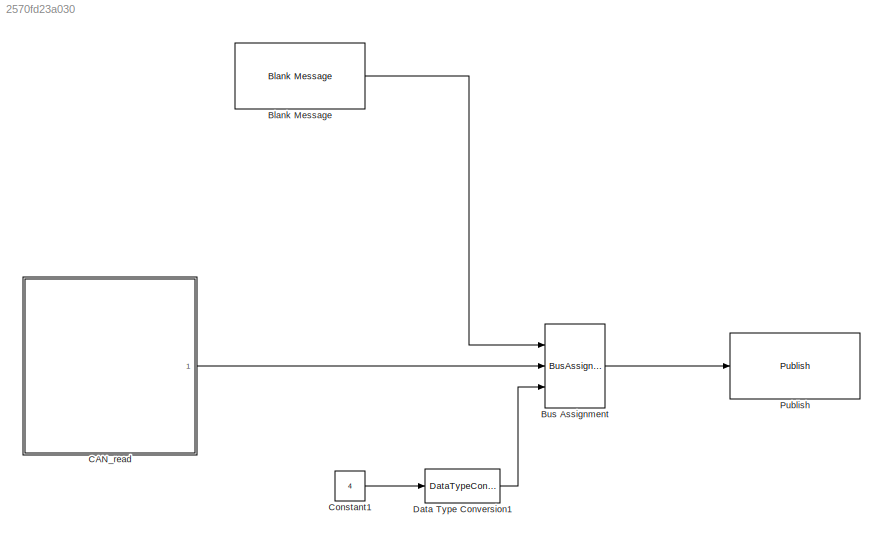
MODEL slx_2570fd23a030
KIND model
CONFIG AbsTol = auto
CONFIG EnableMultiTasking = off
CONFIG FixedStep = 0.001
CONFIG MaxStep = auto
CONFIG MinStep = auto
CONFIG RelTol = 1e-3
CONFIG SampleTimeConstraint = Unconstrained
CONFIG Solver = FixedStepAuto
CONFIG SolverName = FixedStepAuto
CONFIG StartTime = 0.0
CONFIG StopTime = inf
WORKSPACE source: MAT-file member
WORKSPACE SL_ROS_VariableLengthArrays_MaxSizes: struct (value not decoded)
BLOCK [Reference] Blank Message  REF=robotlib/Blank Message
  Ports = [0, 1]
  SourceBlock = robotlib/Blank Message
  SourceLibraryInfo = This block requires Robotics System Toolbox
  SourceProductBaseCode = RO
  SourceProductName = Robotics System Toolbox
  SourceType = ROS Blank Message
BLOCK [BusAssignment] Bus Assignment
  AssignedSignals = Data,Data_SL_Info.CurrentLength
  Ports = [3, 1]
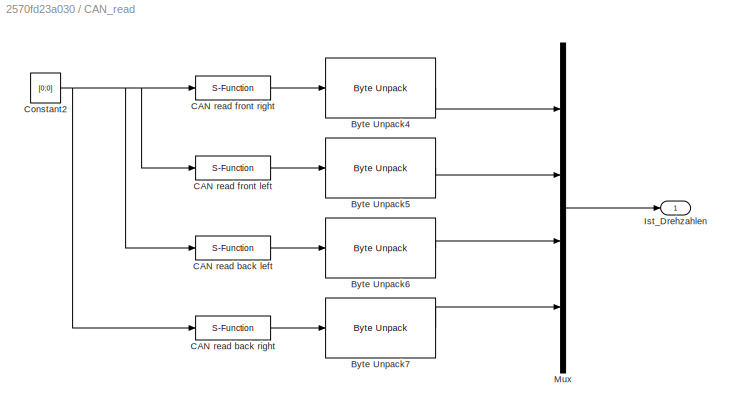
BLOCK [SubSystem] CAN_read
  Ports = [0, 1]
  RequestExecContextInheritance = off
  Variant = off
BLOCK [Reference] CAN_read/Byte Unpack4  REF=etargetslib/Byte Unpack
  Ports = [1, 1]
  SourceBlock = etargetslib/Byte Unpack
  SourceType = Byte Unpack
BLOCK [Reference] CAN_read/Byte Unpack5  REF=etargetslib/Byte Unpack
  Ports = [1, 1]
  SourceBlock = etargetslib/Byte Unpack
  SourceType = Byte Unpack
BLOCK [Reference] CAN_read/Byte Unpack6  REF=etargetslib/Byte Unpack
  Ports = [1, 1]
  SourceBlock = etargetslib/Byte Unpack
  SourceType = Byte Unpack
BLOCK [Reference] CAN_read/Byte Unpack7  REF=etargetslib/Byte Unpack
  Ports = [1, 1]
  SourceBlock = etargetslib/Byte Unpack
  SourceType = Byte Unpack
BLOCK [S-Function] CAN_read/CAN read back left
  EnableBusSupport = off
  FunctionName = CAN_read_SDM
  Parameters = Port,Identifier
  Ports = [1, 1]
  SFcnIsStateOwnerBlock = off
  SFunctionDeploymentMode = off
  SFunctionModules = socketcan
BLOCK [S-Function] CAN_read/CAN read back right
  EnableBusSupport = off
  FunctionName = CAN_read_SDM
  Parameters = Port,Identifier
  Ports = [1, 1]
  SFcnIsStateOwnerBlock = off
  SFunctionDeploymentMode = off
  SFunctionModules = socketcan
BLOCK [S-Function] CAN_read/CAN read front left
  EnableBusSupport = off
  FunctionName = CAN_read_SDM
  Parameters = Port,Identifier
  Ports = [1, 1]
  SFcnIsStateOwnerBlock = off
  SFunctionDeploymentMode = off
  SFunctionModules = socketcan
BLOCK [S-Function] CAN_read/CAN read front right 
  EnableBusSupport = off
  FunctionName = CAN_read_SDM
  Parameters = Port,Identifier
  Ports = [1, 1]
  SFcnIsStateOwnerBlock = off
  SFunctionDeploymentMode = off
  SFunctionModules = socketcan
BLOCK [Constant] CAN_read/Constant2
  Value = [0;0]
BLOCK [Outport] CAN_read/Ist_Drehzahlen
  IconDisplay = Port number
BLOCK [Mux] CAN_read/Mux
  DisplayOption = bar
  Ports = [4, 1]
BLOCK [Constant] Constant1
  Value = 4
BLOCK [DataTypeConversion] Data Type Conversion1
  OutDataTypeStr = uint32
  RndMeth = Floor
  SaturateOnIntegerOverflow = off
BLOCK [Reference] Publish  REF=robotlib/Publish
  Ports = [1]
  SourceBlock = robotlib/Publish
  SourceLibraryInfo = This block requires Robotics System Toolbox
  SourceProductBaseCode = RO
  SourceProductName = Robotics System Toolbox
  SourceType = ROS Publish
LINE Blank Message:1 -> Bus Assignment:1
LINE Bus Assignment:1 -> Publish:1
LINE CAN_read/Byte Unpack4:1 -> CAN_read/Mux:1
LINE CAN_read/Byte Unpack5:1 -> CAN_read/Mux:2
LINE CAN_read/Byte Unpack6:1 -> CAN_read/Mux:3
LINE CAN_read/Byte Unpack7:1 -> CAN_read/Mux:4
LINE CAN_read/CAN read back left:1 -> CAN_read/Byte Unpack6:1
LINE CAN_read/CAN read back right:1 -> CAN_read/Byte Unpack7:1
LINE CAN_read/CAN read front left:1 -> CAN_read/Byte Unpack5:1
LINE CAN_read/CAN read front right :1 -> CAN_read/Byte Unpack4:1
NET CAN_read/Constant2:1 -> CAN_read/CAN read back left:1, CAN_read/CAN read back right:1, CAN_read/CAN read front left:1, CAN_read/CAN read front right :1
LINE CAN_read/Mux:1 -> CAN_read/Ist_Drehzahlen:1
LINE CAN_read:1 -> Bus Assignment:2
LINE Constant1:1 -> Data Type Conversion1:1
LINE Data Type Conversion1:1 -> Bus Assignment:3
note: NET lines group one-source signal fan-out (src -> all destinations, sorted); 1:1 wires keep LINE
